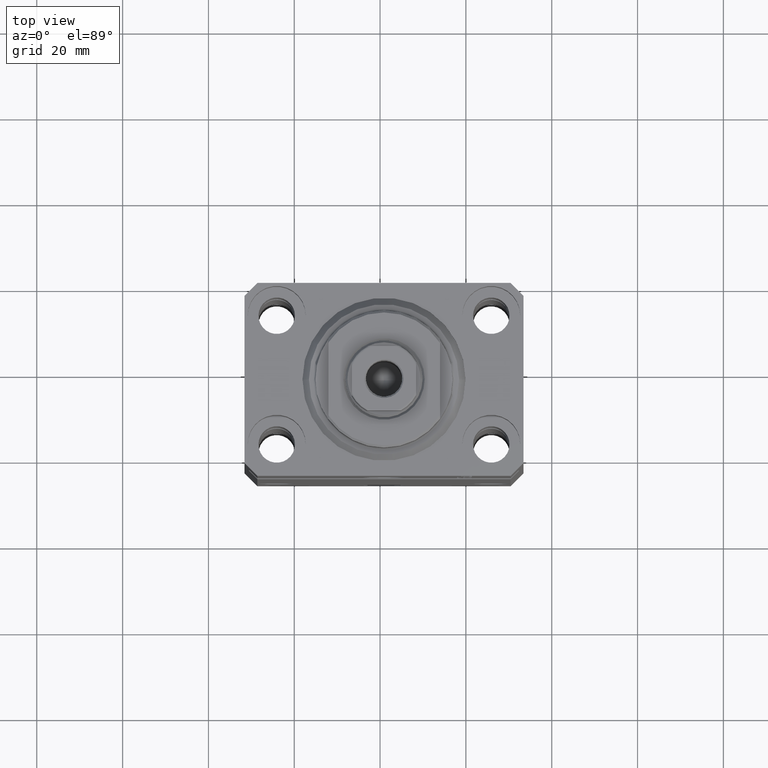
[diagram: clean part render]
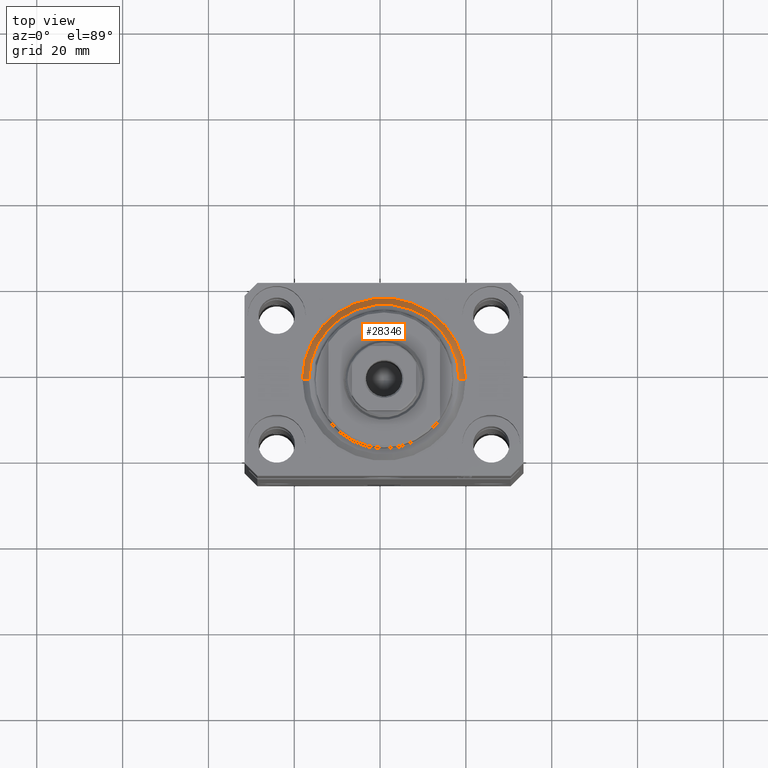
[diagram: same view with one face highlighted and labeled with its STEP entity id]
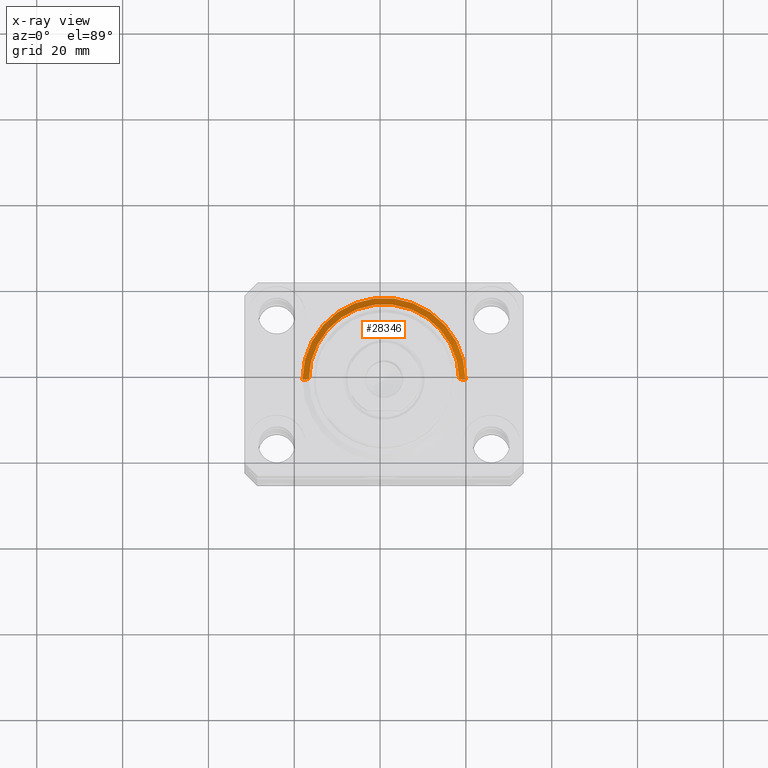
[diagram: x-ray of the same camera — body ghosted, the highlighted face saturated]
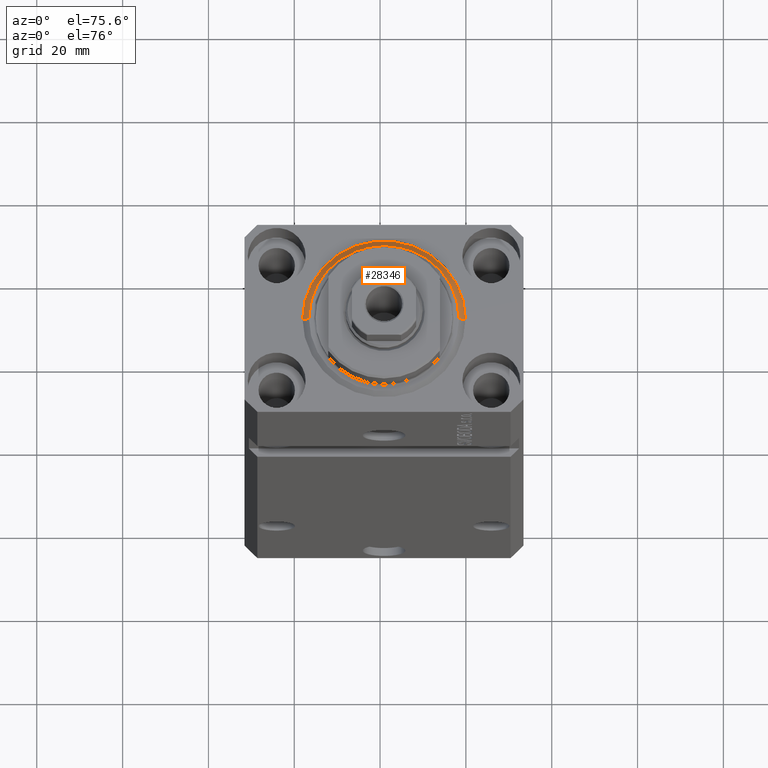
[diagram: same view with one face highlighted and labeled with its STEP entity id]
A machine part, top view. The second image highlights one B-rep face of the part: STEP entity #28346.
The next image is the same camera in x-ray: the body ghosted, the highlighted face saturated — about 0% of this face is hidden behind the body in this view.
A second angle (auxiliary view) of the same face is appended — the face is thin or edge-on in the first view.
In plain terms, the highlighted conical surface has half-angle 45 deg.
Its self-contained STEP definition (entity closure, byte-faithful):
#305 = VECTOR ( 'NONE', #32084, 1000.000000000000000 ) ;
#1571 = CARTESIAN_POINT ( 'NONE',  ( 19.00000000000000000, 0.000000000000000000, 1.500000000000004885 ) ) ;
#3077 = CARTESIAN_POINT ( 'NONE',  ( 17.49999999999999289, 0.000000000000000000, 0.000000000000000000 ) ) ;
#3192 = ORIENTED_EDGE ( 'NONE', *, *, #13366, .F. ) ;
#3267 = AXIS2_PLACEMENT_3D ( 'NONE', #8748, #8282, #22074 ) ;
#3977 = CIRCLE ( 'NONE', #3267, 19.00000000000000000 ) ;
#4197 = CARTESIAN_POINT ( 'NONE',  ( -17.49999999999999289, 2.234980408443919215E-15, 0.000000000000000000 ) ) ;
#5211 = VERTEX_POINT ( 'NONE', #3077 ) ;
#5511 = EDGE_CURVE ( 'NONE', #34662, #5211, #17976, .T. ) ;
#5785 = AXIS2_PLACEMENT_3D ( 'NONE', #15739, #26083, #11624 ) ;
#6509 = VERTEX_POINT ( 'NONE', #13353 ) ;
#7336 = DIRECTION ( 'NONE',  ( 1.000000000000000000, 0.000000000000000000, 0.000000000000000000 ) ) ;
#8267 = CARTESIAN_POINT ( 'NONE',  ( -19.00000000000000000, 0.000000000000000000, 1.500000000000004885 ) ) ;
#8282 = DIRECTION ( 'NONE',  ( -0.000000000000000000, -0.000000000000000000, 1.000000000000000000 ) ) ;
#8748 = CARTESIAN_POINT ( 'NONE',  ( 0.000000000000000000, 0.000000000000000000, 1.500000000000004885 ) ) ;
#10946 = CARTESIAN_POINT ( 'NONE',  ( -19.00000000000000000, 2.326828918379970970E-15, 1.500000000000004885 ) ) ;
#11624 = DIRECTION ( 'NONE',  ( 1.000000000000000000, 0.000000000000000000, 0.000000000000000000 ) ) ;
#11658 = CONICAL_SURFACE ( 'NONE', #5785, 19.00000000000000000, 0.7853981633974492782 ) ;
#13353 = CARTESIAN_POINT ( 'NONE',  ( 19.00000000000000000, 2.326828918379970970E-15, 1.500000000000004885 ) ) ;
#13366 = EDGE_CURVE ( 'NONE', #6509, #19958, #3977, .T. ) ;
#13488 = ORIENTED_EDGE ( 'NONE', *, *, #5511, .F. ) ;
#13569 = EDGE_CURVE ( 'NONE', #34662, #19958, #42445, .T. ) ;
#14562 = EDGE_LOOP ( 'NONE', ( #13488, #20622, #3192, #17159 ) ) ;
#15059 = FACE_OUTER_BOUND ( 'NONE', #14562, .T. ) ;
#15739 = CARTESIAN_POINT ( 'NONE',  ( 0.000000000000000000, 0.000000000000000000, 1.500000000000004885 ) ) ;
#16013 = VECTOR ( 'NONE', #29593, 1000.000000000000000 ) ;
#17159 = ORIENTED_EDGE ( 'NONE', *, *, #42302, .F. ) ;
#17976 = CIRCLE ( 'NONE', #22377, 17.49999999999999289 ) ;
#19958 = VERTEX_POINT ( 'NONE', #8267 ) ;
#20622 = ORIENTED_EDGE ( 'NONE', *, *, #13569, .T. ) ;
#22074 = DIRECTION ( 'NONE',  ( 1.000000000000000000, 0.000000000000000000, 0.000000000000000000 ) ) ;
#22377 = AXIS2_PLACEMENT_3D ( 'NONE', #24789, #39054, #7336 ) ;
#24789 = CARTESIAN_POINT ( 'NONE',  ( 0.000000000000000000, 0.000000000000000000, 0.000000000000000000 ) ) ;
#26083 = DIRECTION ( 'NONE',  ( -0.000000000000000000, -0.000000000000000000, 1.000000000000000000 ) ) ;
#28346 = ADVANCED_FACE ( 'NONE', ( #15059 ), #11658, .T. ) ;
#29593 = DIRECTION ( 'NONE',  ( 0.7071067811865483499, 0.000000000000000000, 0.7071067811865467956 ) ) ;
#32084 = DIRECTION ( 'NONE',  ( -0.7071067811865483499, 8.659560562354943952E-17, 0.7071067811865467956 ) ) ;
#33066 = LINE ( 'NONE', #1571, #16013 ) ;
#34662 = VERTEX_POINT ( 'NONE', #4197 ) ;
#39054 = DIRECTION ( 'NONE',  ( -0.000000000000000000, -0.000000000000000000, -1.000000000000000000 ) ) ;
#42302 = EDGE_CURVE ( 'NONE', #5211, #6509, #33066, .T. ) ;
#42445 = LINE ( 'NONE', #10946, #305 ) ;